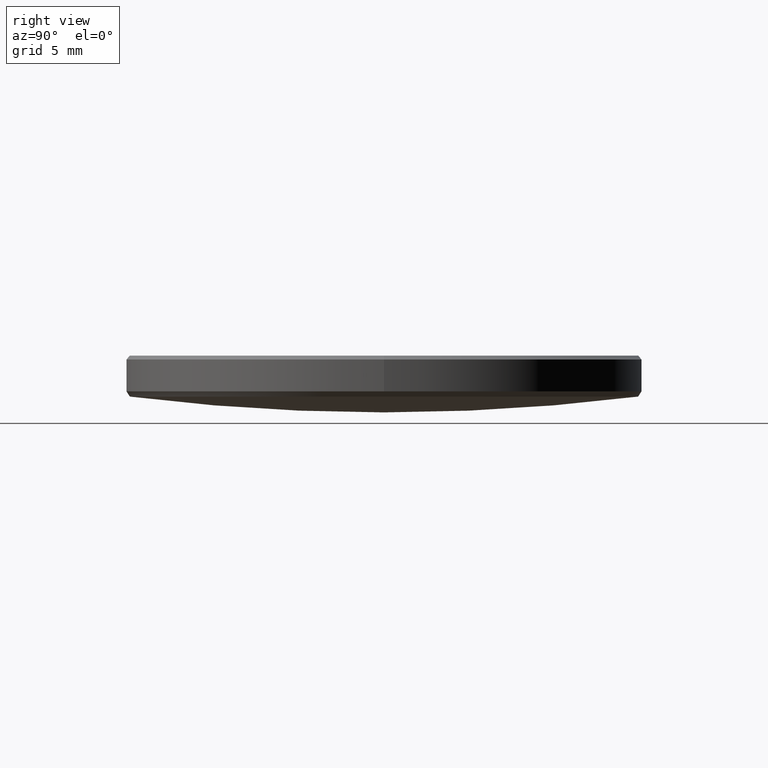
[diagram: clean part render]
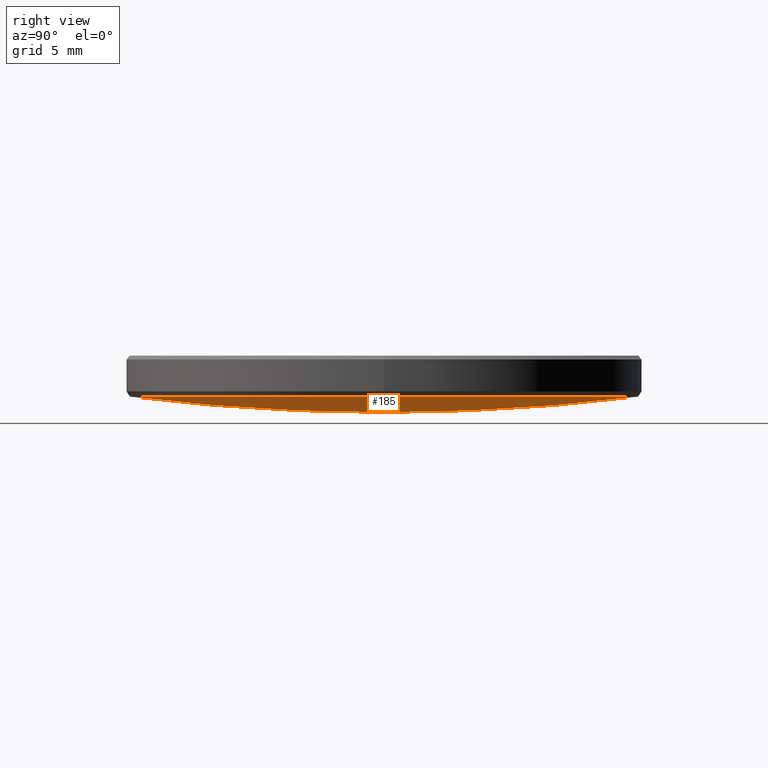
[diagram: same view with one face highlighted and labeled with its STEP entity id]
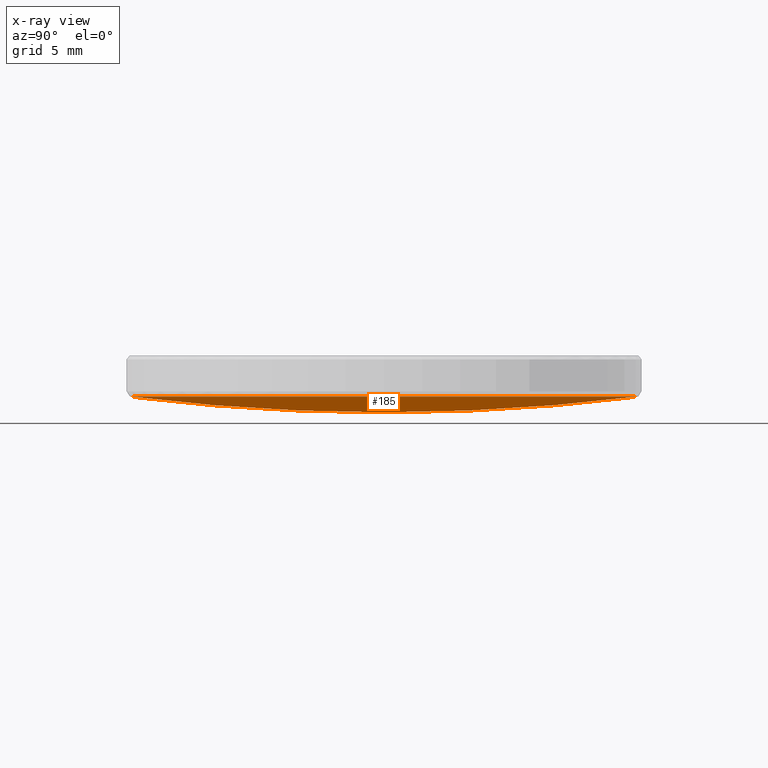
[diagram: x-ray of the same camera — body ghosted, the highlighted face saturated]
A machine part, right view. The second image highlights one B-rep face of the part: STEP entity #185.
The next image is the same camera in x-ray: the body ghosted, the highlighted face saturated — about 0% of this face is hidden behind the body in this view.
In plain terms, the highlighted spherical surface has radius 100.89 mm.
Its self-contained STEP definition (entity closure, byte-faithful):
#23 = DIRECTION ( 'NONE',  ( -1.000000000000000000, 1.224646799147353207E-16, 0.000000000000000000 ) ) ;
#28 = AXIS2_PLACEMENT_3D ( 'NONE', #110, #32, #86 ) ;
#32 = DIRECTION ( 'NONE',  ( 0.000000000000000000, 0.000000000000000000, -1.000000000000000000 ) ) ;
#34 = DIRECTION ( 'NONE',  ( 0.000000000000000000, 0.000000000000000000, -1.000000000000000000 ) ) ;
#42 = AXIS2_PLACEMENT_3D ( 'NONE', #157, #184, #288 ) ;
#46 = DIRECTION ( 'NONE',  ( 1.000000000000000000, -0.000000000000000000, 0.000000000000000000 ) ) ;
#57 = EDGE_CURVE ( 'NONE', #293, #300, #96, .T. ) ;
#78 = DIRECTION ( 'NONE',  ( 1.000000000000000000, 0.000000000000000000, 0.000000000000000000 ) ) ;
#86 = DIRECTION ( 'NONE',  ( 1.000000000000000000, 0.000000000000000000, 0.000000000000000000 ) ) ;
#93 = CARTESIAN_POINT ( 'NONE',  ( 12.50176226215777930, 0.000000000000000000, 3.975045240485544529 ) ) ;
#96 = CIRCLE ( 'NONE', #177, 100.8900000000000006 ) ;
#99 = CARTESIAN_POINT ( 'NONE',  ( 0.000000000000000000, 0.000000000000000000, 104.0874722430335027 ) ) ;
#110 = CARTESIAN_POINT ( 'NONE',  ( 0.000000000000000000, 0.000000000000000000, 3.975045240485544529 ) ) ;
#115 = EDGE_LOOP ( 'NONE', ( #268, #195, #211, #117 ) ) ;
#117 = ORIENTED_EDGE ( 'NONE', *, *, #280, .T. ) ;
#142 = CARTESIAN_POINT ( 'NONE',  ( 0.000000000000000000, 0.000000000000000000, 104.0874722430335027 ) ) ;
#148 = CARTESIAN_POINT ( 'NONE',  ( 0.000000000000000000, 6.177730778298823983E-15, 3.197472243033488759 ) ) ;
#150 = EDGE_CURVE ( 'NONE', #293, #163, #152, .T. ) ;
#152 = CIRCLE ( 'NONE', #286, 100.8900000000000006 ) ;
#153 = EDGE_CURVE ( 'NONE', #163, #216, #167, .T. ) ;
#157 = CARTESIAN_POINT ( 'NONE',  ( 0.000000000000000000, 0.000000000000000000, 104.0874722430335027 ) ) ;
#163 = VERTEX_POINT ( 'NONE', #314 ) ;
#167 = CIRCLE ( 'NONE', #28, 12.50176226215777930 ) ;
#177 = AXIS2_PLACEMENT_3D ( 'NONE', #142, #23, #194 ) ;
#184 = DIRECTION ( 'NONE',  ( -1.000000000000000000, 0.000000000000000000, 0.000000000000000000 ) ) ;
#185 = ADVANCED_FACE ( 'NONE', ( #214 ), #287, .T. ) ;
#194 = DIRECTION ( 'NONE',  ( -1.224646799147353454E-16, -1.000000000000000000, 0.000000000000000000 ) ) ;
#195 = ORIENTED_EDGE ( 'NONE', *, *, #150, .T. ) ;
#211 = ORIENTED_EDGE ( 'NONE', *, *, #153, .T. ) ;
#214 = FACE_OUTER_BOUND ( 'NONE', #115, .T. ) ;
#216 = VERTEX_POINT ( 'NONE', #93 ) ;
#230 = CIRCLE ( 'NONE', #261, 12.50176226215777930 ) ;
#253 = CARTESIAN_POINT ( 'NONE',  ( -1.531024313805262852E-15, -12.50176226215772068, 3.975045240485544529 ) ) ;
#260 = CARTESIAN_POINT ( 'NONE',  ( 0.000000000000000000, 0.000000000000000000, 3.975045240485544529 ) ) ;
#261 = AXIS2_PLACEMENT_3D ( 'NONE', #260, #299, #78 ) ;
#268 = ORIENTED_EDGE ( 'NONE', *, *, #57, .F. ) ;
#280 = EDGE_CURVE ( 'NONE', #216, #300, #230, .T. ) ;
#286 = AXIS2_PLACEMENT_3D ( 'NONE', #99, #46, #34 ) ;
#287 = SPHERICAL_SURFACE ( 'NONE', #42, 100.8900000000000006 ) ;
#288 = DIRECTION ( 'NONE',  ( 0.000000000000000000, 1.000000000000000000, 0.000000000000000000 ) ) ;
#293 = VERTEX_POINT ( 'NONE', #148 ) ;
#299 = DIRECTION ( 'NONE',  ( 0.000000000000000000, 0.000000000000000000, -1.000000000000000000 ) ) ;
#300 = VERTEX_POINT ( 'NONE', #253 ) ;
#314 = CARTESIAN_POINT ( 'NONE',  ( 0.000000000000000000, 12.50176226215772068, 3.975045240485544529 ) ) ;